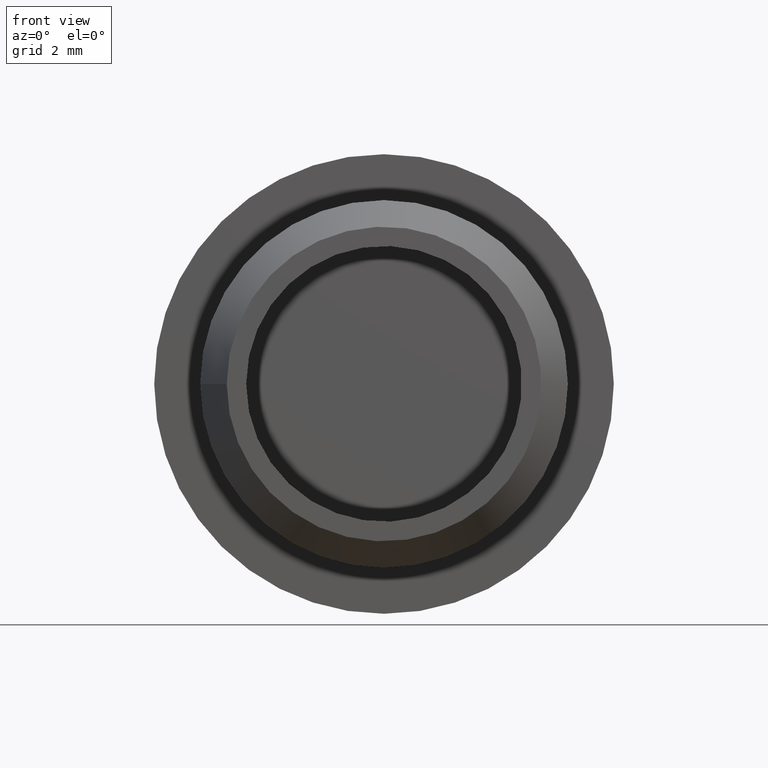
[diagram: clean part render]
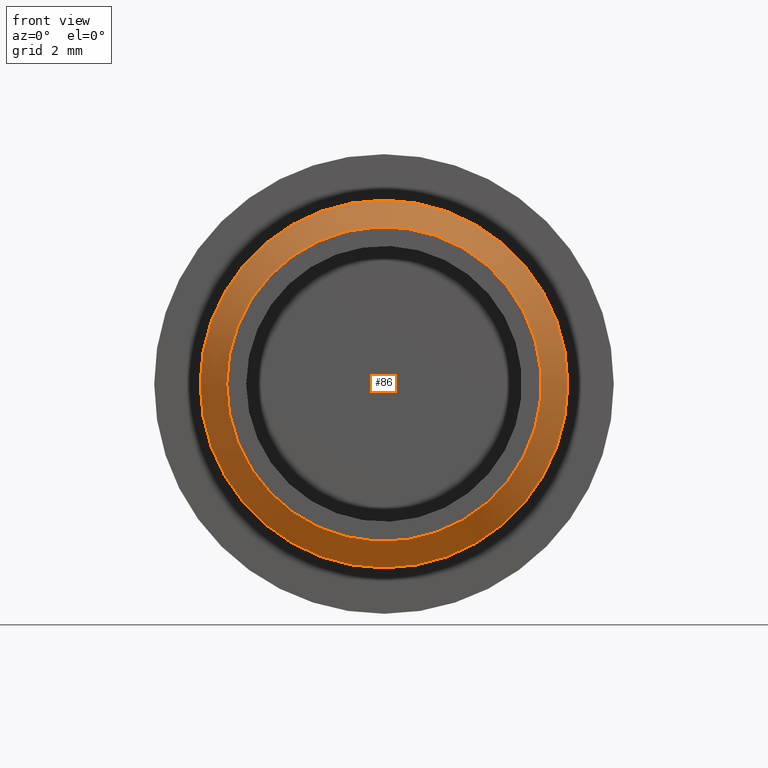
[diagram: same view with one face highlighted and labeled with its STEP entity id]
A machine part, front view. The second image highlights one B-rep face of the part: STEP entity #86.
In plain terms, the highlighted conical surface has half-angle 30 deg.
Its self-contained STEP definition (entity closure, byte-faithful):
#22=FACE_BOUND('',#37,.T.);
#28=FACE_OUTER_BOUND('',#36,.T.);
#36=EDGE_LOOP('',(#71));
#37=EDGE_LOOP('',(#72));
#50=CIRCLE('',#97,3.42264973081037);
#51=CIRCLE('',#98,4.);
#57=VERTEX_POINT('',#145);
#58=VERTEX_POINT('',#147);
#64=EDGE_CURVE('',#57,#57,#50,.T.);
#65=EDGE_CURVE('',#58,#58,#51,.T.);
#71=ORIENTED_EDGE('',*,*,#64,.T.);
#72=ORIENTED_EDGE('',*,*,#65,.T.);
#85=CONICAL_SURFACE('',#96,3.71132486540519,30.);
#86=ADVANCED_FACE('',(#28,#22),#85,.T.);
#96=AXIS2_PLACEMENT_3D('',#144,#113,#114);
#97=AXIS2_PLACEMENT_3D('',#146,#115,#116);
#98=AXIS2_PLACEMENT_3D('',#148,#117,#118);
#113=DIRECTION('center_axis',(0.,1.,0.));
#114=DIRECTION('ref_axis',(1.,0.,0.));
#115=DIRECTION('center_axis',(0.,1.,0.));
#116=DIRECTION('ref_axis',(1.,0.,0.));
#117=DIRECTION('center_axis',(0.,-1.,0.));
#118=DIRECTION('ref_axis',(1.,0.,0.));
#144=CARTESIAN_POINT('Origin',(0.,0.499999999999999,0.));
#145=CARTESIAN_POINT('',(-3.42264973081037,-5.55111512312578E-16,4.19153703743948E-16));
#146=CARTESIAN_POINT('Origin',(0.,-5.55111512312578E-16,0.));
#147=CARTESIAN_POINT('',(-4.,1.,-4.89858719658941E-16));
#148=CARTESIAN_POINT('Origin',(0.,1.,0.));